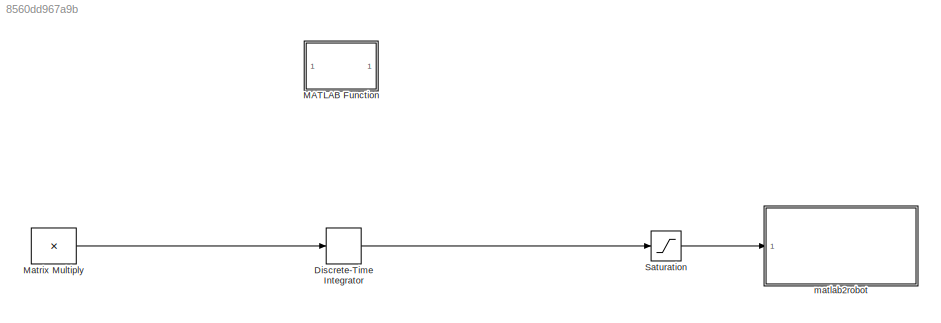
MODEL slx_8560dd967a9b
KIND model
CONFIG AbsTol = auto
CONFIG EnableMultiTasking = on
CONFIG FixedStep = auto
CONFIG MaxStep = auto
CONFIG MinStep = auto
CONFIG RelTol = 1e-3
CONFIG SampleTimeConstraint = Unconstrained
CONFIG Solver = ode45
CONFIG SolverName = ode45
CONFIG StartTime = 0.0
CONFIG StopTime = 10.0
BLOCK [DiscreteIntegrator] Discrete-Time Integrator
  ICPrevOutput = DiscIntNeverNeededParam
  ICPrevScaledInput = DiscIntNeverNeededParam
  InitialCondition = q0
  InitialConditionSetting = Auto
  Ports = [1, 1]
  SampleTime = dT
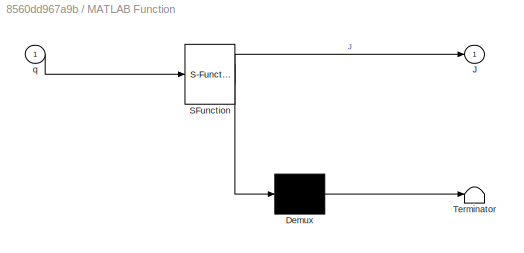
BLOCK [SubSystem] MATLAB Function
  ErrorFcn = Stateflow.Translate.translate
  PermitHierarchicalResolution = ExplicitOnly
  Ports = [1, 1]
  RequestExecContextInheritance = off
  SFBlockType = MATLAB Function
  TreatAsAtomicUnit = on
BLOCK [Demux] MATLAB Function/ Demux 
  Outputs = 1
  Ports = [1, 1]
BLOCK [S-Function] MATLAB Function/ SFunction 
  EnableBusSupport = off
  FunctionName = sf_sfun
  PortCounts = [1 2]
  Ports = [1, 2]
  SFcnIsStateOwnerBlock = off
  SFunctionDeploymentMode = off
  Tag = Stateflow S-Function 2
BLOCK [Terminator] MATLAB Function/ Terminator 
BLOCK [Outport] MATLAB Function/J
  IconDisplay = Port number
BLOCK [Inport] MATLAB Function/q
  IconDisplay = Port number
BLOCK [Product] Matrix Multiply
  InputSameDT = off
  Multiplication = Matrix(*)
  OutDataTypeStr = Inherit: Inherit via internal rule
  Ports = [2, 1]
  RndMeth = Floor
  SaturateOnIntegerOverflow = off
BLOCK [Saturate] Saturation
  InputPortMap = u0
  LowerLimit = ([-94.5, -40, -75, -160, -120, -180]+5)*pi/180
  Ports = [1, 1]
  UpperLimit = ([94.5, 75, 45, 160, 120 180]-5)*pi/180
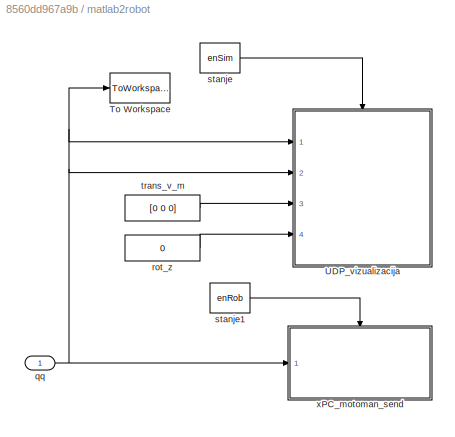
BLOCK [SubSystem] matlab2robot
  Ports = [1]
  RequestExecContextInheritance = off
BLOCK [ToWorkspace] matlab2robot/To Workspace
  MaxDataPoints = inf
  Ports = [1]
  SampleTime = -1
  VariableName = qq
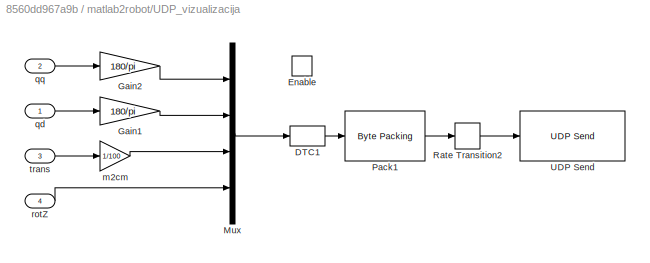
BLOCK [SubSystem] matlab2robot/UDP_vizualizacija
  Ports = [4, 0, 1]
  RequestExecContextInheritance = off
BLOCK [DataTypeConversion] matlab2robot/UDP_vizualizacija/DTC1
  OutDataTypeStr = single
  RndMeth = Floor
  SaturateOnIntegerOverflow = off
BLOCK [EnablePort] matlab2robot/UDP_vizualizacija/Enable
  Ports = []
  StatesWhenEnabling = reset
BLOCK [Gain] matlab2robot/UDP_vizualizacija/Gain1
  Gain = 180/pi
  OutDataTypeStr = Inherit: Inherit via internal rule
  ParamDataTypeStr = Inherit: Inherit via internal rule
  SaturateOnIntegerOverflow = off
BLOCK [Gain] matlab2robot/UDP_vizualizacija/Gain2
  Gain = 180/pi
  OutDataTypeStr = Inherit: Inherit via internal rule
  ParamDataTypeStr = Inherit: Inherit via internal rule
  SaturateOnIntegerOverflow = off
BLOCK [Mux] matlab2robot/UDP_vizualizacija/Mux
  DisplayOption = bar
  Ports = [4, 1]
BLOCK [Reference] matlab2robot/UDP_vizualizacija/Pack1  REF=xpcutilitieslib/Byte Packing 
  Ports = [1, 1]
  SourceBlock = xpcutilitieslib/Byte Packing
  SourceProductBaseCode = XP
  SourceProductName = Simulink Real-Time
  SourceType = xpcbytepacking
BLOCK [RateTransition] matlab2robot/UDP_vizualizacija/Rate Transition2
BLOCK [Reference] matlab2robot/UDP_vizualizacija/UDP Send  REF=dspnetwork/UDP Send
  Ports = [1]
  SourceBlock = dspnetwork/UDP Send
  SourceProductBaseCode = SL
  SourceProductName = Simulink
  SourceType = UDP Send
BLOCK [Gain] matlab2robot/UDP_vizualizacija/m2cm
  Gain = 1/100
  OutDataTypeStr = Inherit: Inherit via internal rule
  ParamDataTypeStr = Inherit: Inherit via internal rule
  SaturateOnIntegerOverflow = off
BLOCK [Inport] matlab2robot/UDP_vizualizacija/qd
  IconDisplay = Port number
BLOCK [Inport] matlab2robot/UDP_vizualizacija/qq
  IconDisplay = Port number
  Port = 2
BLOCK [Inport] matlab2robot/UDP_vizualizacija/rotZ
  IconDisplay = Port number
  Port = 4
BLOCK [Inport] matlab2robot/UDP_vizualizacija/trans
  IconDisplay = Port number
  Port = 3
BLOCK [Inport] matlab2robot/qq
  IconDisplay = Port number
BLOCK [Constant] matlab2robot/rot_z
  Value = 0
BLOCK [Constant] matlab2robot/stanje
  SampleTime = dT
  Value = enSim
BLOCK [Constant] matlab2robot/stanje1
  SampleTime = dT
  Value = enRob
BLOCK [Constant] matlab2robot/trans_v_m
  Value = [0 0 0]
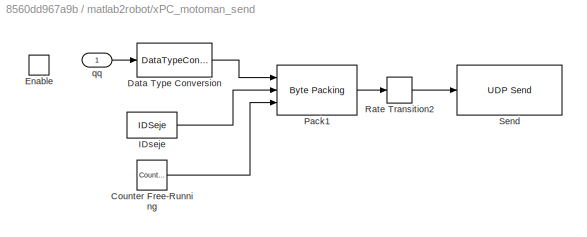
BLOCK [SubSystem] matlab2robot/xPC_motoman_send
  Ports = [1, 0, 1]
  RequestExecContextInheritance = off
BLOCK [Reference] matlab2robot/xPC_motoman_send/Counter Free-Running  REF=simulink/Sources/Counter
Free-Running
  Ports = [0, 1]
  SourceBlock = simulink/Sources/Counter\nFree-Running
  SourceProductBaseCode = SL
  SourceProductName = Simulink
  SourceType = Counter Free-Running
BLOCK [DataTypeConversion] matlab2robot/xPC_motoman_send/Data Type Conversion
  OutDataTypeStr = double
  RndMeth = Floor
  SampleTime = dT
  SaturateOnIntegerOverflow = off
BLOCK [EnablePort] matlab2robot/xPC_motoman_send/Enable
  Ports = []
  StatesWhenEnabling = reset
BLOCK [Constant] matlab2robot/xPC_motoman_send/IDseje
  SampleTime = dT
  Value = IDSeje
BLOCK [Reference] matlab2robot/xPC_motoman_send/Pack1  REF=xpcutilitieslib/Byte Packing 
  Ports = [3, 1]
  SourceBlock = xpcutilitieslib/Byte Packing
  SourceProductBaseCode = XP
  SourceProductName = Simulink Real-Time
  SourceType = xpcbytepacking
BLOCK [RateTransition] matlab2robot/xPC_motoman_send/Rate Transition2
BLOCK [Reference] matlab2robot/xPC_motoman_send/Send  REF=dspnetwork/UDP Send
  Ports = [1]
  SourceBlock = dspnetwork/UDP Send
  SourceProductBaseCode = SL
  SourceProductName = Simulink
  SourceType = UDP Send
BLOCK [Inport] matlab2robot/xPC_motoman_send/qq
  IconDisplay = Port number
LINE Discrete-Time Integrator:1 -> Saturation:1
LINE Matrix Multiply:1 -> Discrete-Time Integrator:1
LINE Saturation:1 -> matlab2robot:1
LINE matlab2robot/UDP_vizualizacija/DTC1:1 -> matlab2robot/UDP_vizualizacija/Pack1:1
LINE matlab2robot/UDP_vizualizacija/Gain1:1 -> matlab2robot/UDP_vizualizacija/Mux:2
LINE matlab2robot/UDP_vizualizacija/Gain2:1 -> matlab2robot/UDP_vizualizacija/Mux:1
LINE matlab2robot/UDP_vizualizacija/Mux:1 -> matlab2robot/UDP_vizualizacija/DTC1:1
LINE matlab2robot/UDP_vizualizacija/Pack1:1 -> matlab2robot/UDP_vizualizacija/Rate Transition2:1
LINE matlab2robot/UDP_vizualizacija/Rate Transition2:1 -> matlab2robot/UDP_vizualizacija/UDP Send:1
LINE matlab2robot/UDP_vizualizacija/m2cm:1 -> matlab2robot/UDP_vizualizacija/Mux:3
LINE matlab2robot/UDP_vizualizacija/qd:1 -> matlab2robot/UDP_vizualizacija/Gain1:1
LINE matlab2robot/UDP_vizualizacija/qq:1 -> matlab2robot/UDP_vizualizacija/Gain2:1
LINE matlab2robot/UDP_vizualizacija/rotZ:1 -> matlab2robot/UDP_vizualizacija/Mux:4
LINE matlab2robot/UDP_vizualizacija/trans:1 -> matlab2robot/UDP_vizualizacija/m2cm:1
NET matlab2robot/qq:1 -> matlab2robot/To Workspace:1, matlab2robot/UDP_vizualizacija:1, matlab2robot/UDP_vizualizacija:2, matlab2robot/xPC_motoman_send:1
LINE matlab2robot/rot_z:1 -> matlab2robot/UDP_vizualizacija:4
LINE matlab2robot/stanje1:1 -> matlab2robot/xPC_motoman_send:enable
LINE matlab2robot/stanje:1 -> matlab2robot/UDP_vizualizacija:enable
LINE matlab2robot/trans_v_m:1 -> matlab2robot/UDP_vizualizacija:3
LINE matlab2robot/xPC_motoman_send/Counter Free-Running:1 -> matlab2robot/xPC_motoman_send/Pack1:3
LINE matlab2robot/xPC_motoman_send/Data Type Conversion:1 -> matlab2robot/xPC_motoman_send/Pack1:1
LINE matlab2robot/xPC_motoman_send/IDseje:1 -> matlab2robot/xPC_motoman_send/Pack1:2
LINE matlab2robot/xPC_motoman_send/Pack1:1 -> matlab2robot/xPC_motoman_send/Rate Transition2:1
LINE matlab2robot/xPC_motoman_send/Rate Transition2:1 -> matlab2robot/xPC_motoman_send/Send:1
LINE matlab2robot/xPC_motoman_send/qq:1 -> matlab2robot/xPC_motoman_send/Data Type Conversion:1
note: NET lines group one-source signal fan-out (src -> all destinations, sorted); 1:1 wires keep LINE
CHART MATLAB Function states=1 transitions=1
  STATE_LABEL 'eML_blk_kernel()'
  STATE_LABEL 'SCRIPT:\nfunction J = jacobi0(q)\n% izracun Jacobijeve matrike glede na polozaje sklepov q\n    J = jacobi0(q);\n'
